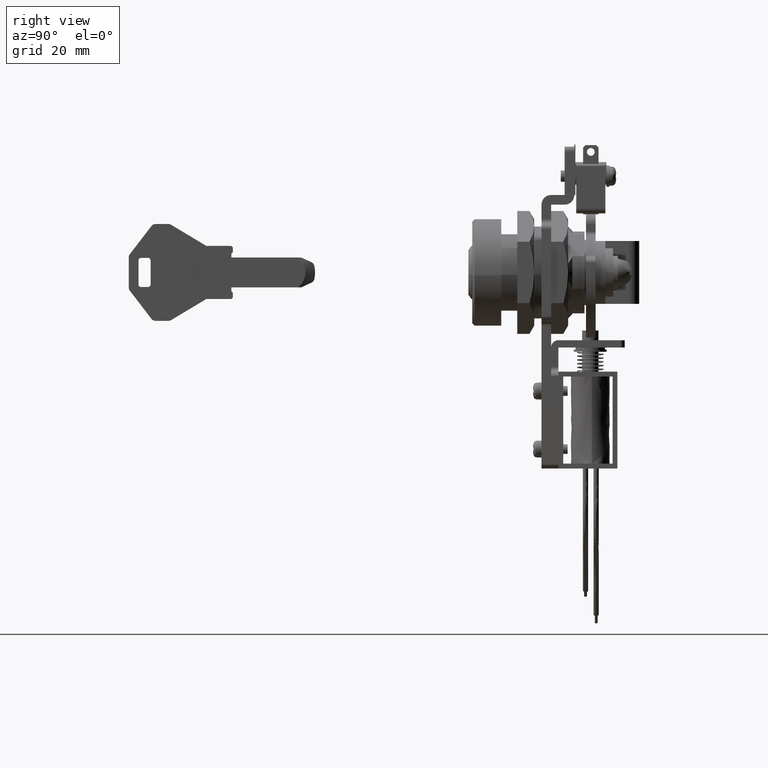
[diagram: clean part render]
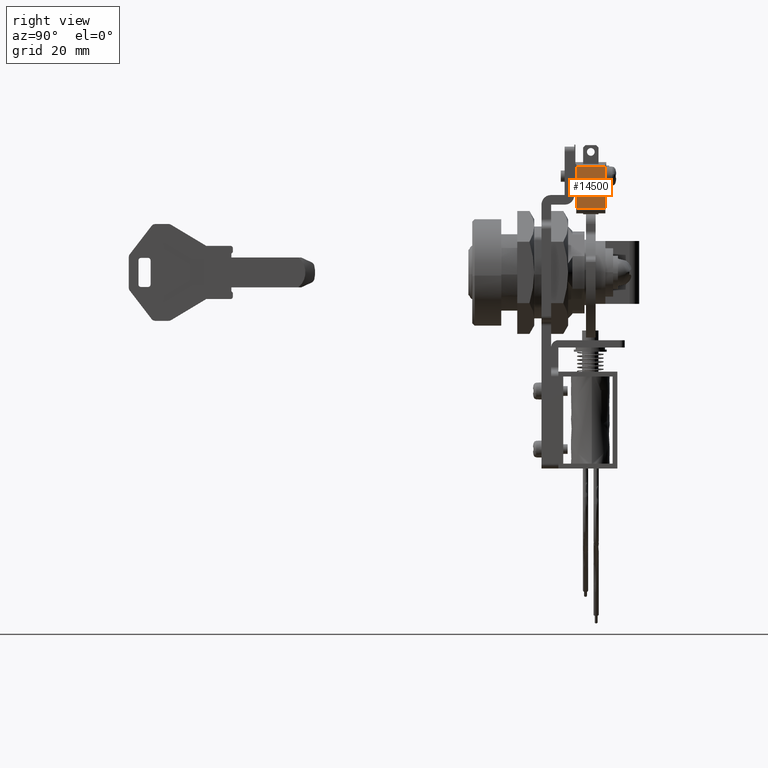
[diagram: same view with one face highlighted and labeled with its STEP entity id]
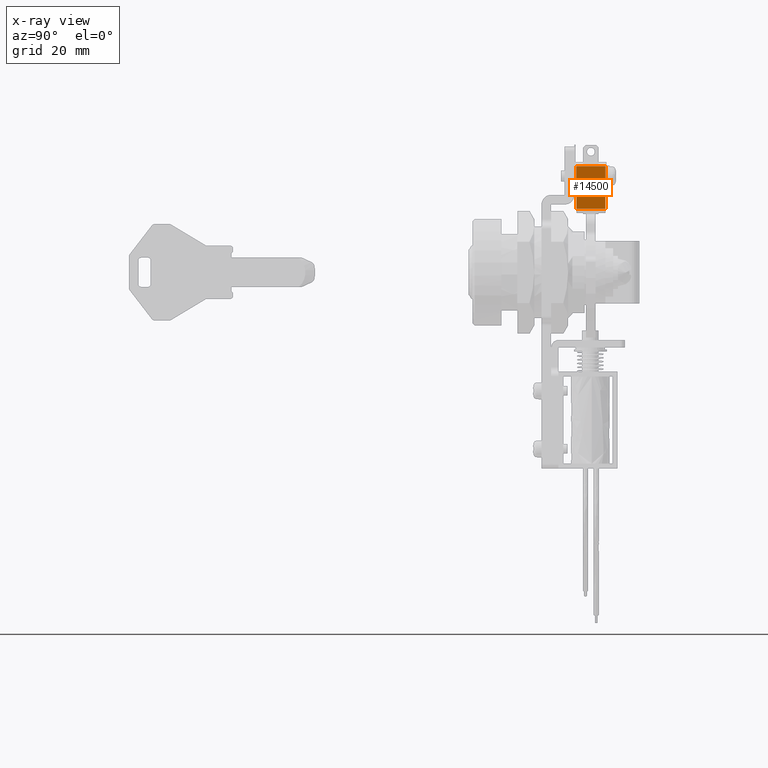
[diagram: x-ray of the same camera — body ghosted, the highlighted face saturated]
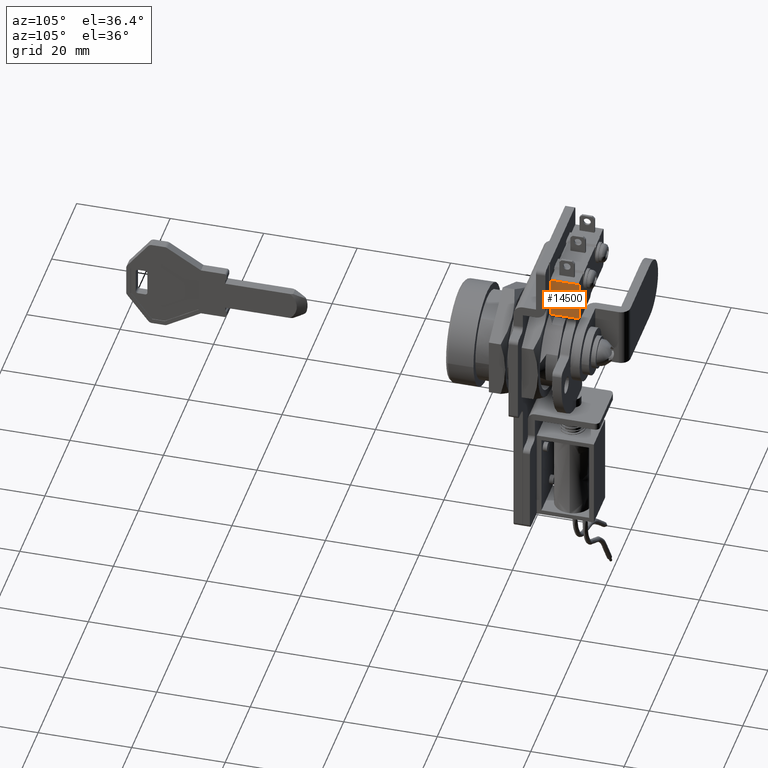
[diagram: same view with one face highlighted and labeled with its STEP entity id]
A machine part, right view. The second image highlights one B-rep face of the part: STEP entity #14500.
The next image is the same camera in x-ray: the body ghosted, the highlighted face saturated — about 0% of this face is hidden behind the body in this view.
A second angle (auxiliary view) of the same face is appended — the face is thin or edge-on in the first view.
In plain terms, the highlighted face is a freeform B-spline surface patch.
Its self-contained STEP definition (entity closure, byte-faithful):
#14430=CARTESIAN_POINT('',(7.099999999969101,15.499968999999950,13.199999999993739));
#14431=VERTEX_POINT('',#14430);
#14452=CARTESIAN_POINT('',(7.099999999969101,21.499968999999950,13.199999999993739));
#14453=VERTEX_POINT('',#14452);
#14465=CARTESIAN_POINT('',(7.099999999969101,21.499968999999950,13.199999999993739));
#14466=CARTESIAN_POINT('',(7.099999999969101,15.499968999999950,13.199999999993739));
#14467=QUASI_UNIFORM_CURVE('',1,(#14465,#14466),.UNSPECIFIED.,.F.,.U.);
#14468=EDGE_CURVE('',#14453,#14431,#14467,.T.);
#14473=CARTESIAN_POINT('',(7.099999999969101,15.200269011629111,12.765434999420190));
#14474=CARTESIAN_POINT('',(7.099999999969101,15.200269011629111,22.334565582985348));
#14475=CARTESIAN_POINT('',(7.099999999969102,21.799669149303330,12.765434999420190));
#14476=CARTESIAN_POINT('',(7.099999999969102,21.799669149303330,22.334565582985348));
#14477=B_SPLINE_SURFACE_WITH_KNOTS('',1,1,((#14473,#14475),(#14474,#14476)),.UNSPECIFIED.,.F.,.F.,.U.,(2,2),(2,2),(0.0,9.569130583565158),(0.0,6.599400137674213),.UNSPECIFIED.);
#14478=CARTESIAN_POINT('',(7.099999999968980,15.499968999999950,21.900000349059599));
#14479=VERTEX_POINT('',#14478);
#14480=CARTESIAN_POINT('',(7.099999999968980,15.499968999999950,21.900000349059599));
#14481=CARTESIAN_POINT('',(7.099999999969101,15.499968999999950,13.199999999993739));
#14482=QUASI_UNIFORM_CURVE('',1,(#14480,#14481),.UNSPECIFIED.,.F.,.U.);
#14483=EDGE_CURVE('',#14479,#14431,#14482,.T.);
#14484=ORIENTED_EDGE('',*,*,#14483,.T.);
#14485=ORIENTED_EDGE('',*,*,#14468,.F.);
#14486=CARTESIAN_POINT('',(7.099999999968980,21.499968999999950,21.900000349059599));
#14487=VERTEX_POINT('',#14486);
#14488=CARTESIAN_POINT('',(7.099999999968980,21.499968999999950,21.900000349059599));
#14489=CARTESIAN_POINT('',(7.099999999969101,21.499968999999950,13.199999999993739));
#14490=QUASI_UNIFORM_CURVE('',1,(#14488,#14489),.UNSPECIFIED.,.F.,.U.);
#14491=EDGE_CURVE('',#14487,#14453,#14490,.T.);
#14492=ORIENTED_EDGE('',*,*,#14491,.F.);
#14493=CARTESIAN_POINT('',(7.099999999968980,21.499968999999950,21.900000349059599));
#14494=CARTESIAN_POINT('',(7.099999999968980,15.499968999999950,21.900000349059599));
#14495=QUASI_UNIFORM_CURVE('',1,(#14493,#14494),.UNSPECIFIED.,.F.,.U.);
#14496=EDGE_CURVE('',#14487,#14479,#14495,.T.);
#14497=ORIENTED_EDGE('',*,*,#14496,.T.);
#14498=EDGE_LOOP('',(#14484,#14485,#14492,#14497));
#14499=FACE_OUTER_BOUND('',#14498,.T.);
#14500=ADVANCED_FACE('',(#14499),#14477,.F.);